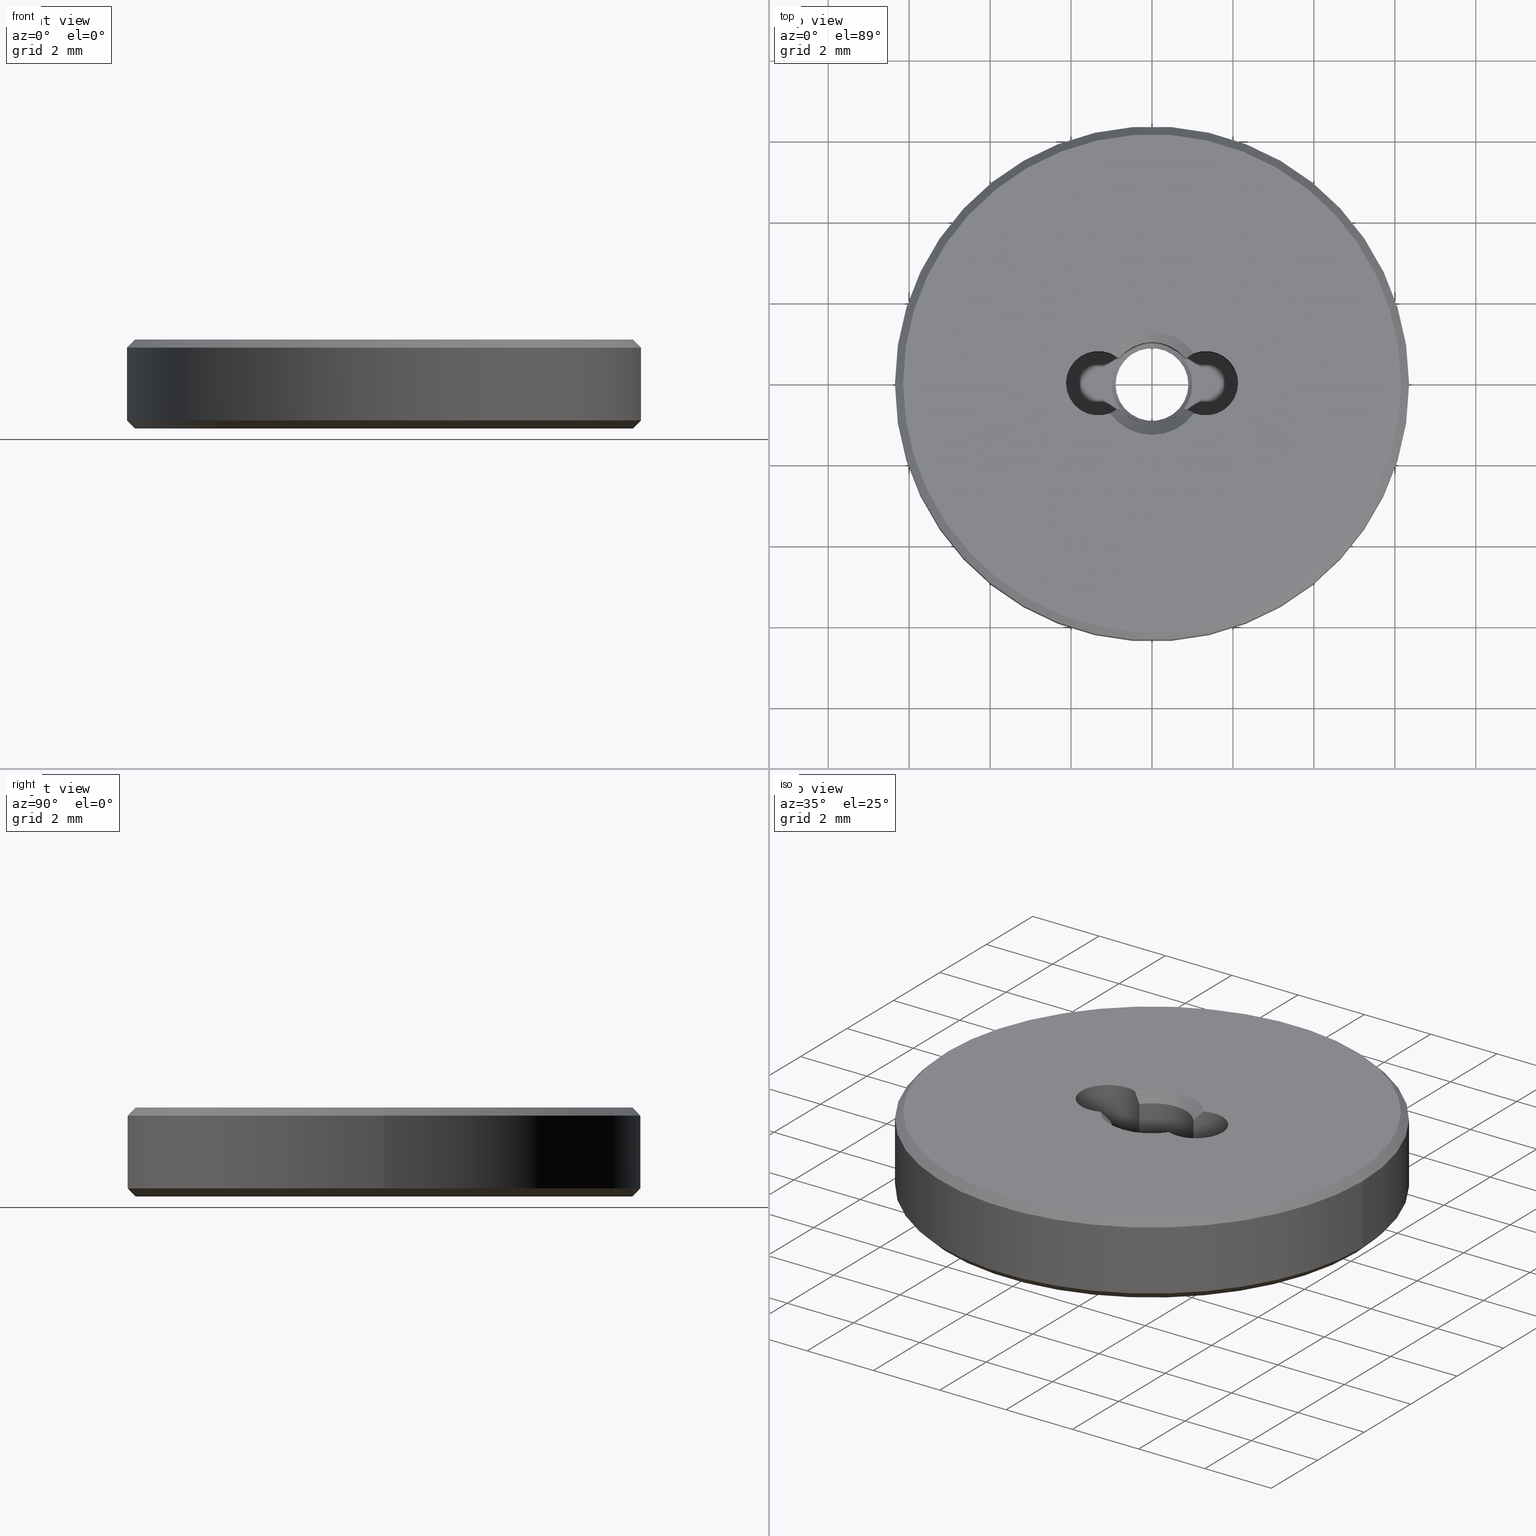
[diagram: canonical four-view strip — front | top / right | iso, engineering-drawing reading convention]
A machine part, canonical four-view strip (front | top / right | iso — engineering-drawing reading convention). The complete STEP part file that produces these views, byte-faithful:
ISO-10303-21;
HEADER;
FILE_DESCRIPTION (( 'STEP AP203' ),
    '1' );
FILE_NAME ('1.6.4.2-ZSJ-05-2.STEP',
    '2024-04-15T05:48:47',
    ( '' ),
    ( '' ),
    'SwSTEP 2.0',
    'SolidWorks 2021',
    '' );
FILE_SCHEMA (( 'CONFIG_CONTROL_DESIGN' ));
ENDSEC;

DATA;
#1 = ORIENTED_EDGE ( 'NONE', *, *, #346, .T. ) ;
#2 = AXIS2_PLACEMENT_3D ( 'NONE', #662, #394, #171 ) ;
#3 = DIRECTION ( 'NONE',  ( -0.000000000000000000, -0.000000000000000000, 1.000000000000000000 ) ) ;
#4 = PRODUCT_DEFINITION_FORMATION_WITH_SPECIFIED_SOURCE ( '�κ�', '', #528, .NOT_KNOWN. ) ;
#5 = FACE_OUTER_BOUND ( 'NONE', #540, .T. ) ;
#6 = DIRECTION ( 'NONE',  ( -0.000000000000000000, -0.000000000000000000, 1.000000000000000000 ) ) ;
#7 = CARTESIAN_POINT ( 'NONE',  ( 0.000000000000000000, 0.000000000000000000, 0.000000000000000000 ) ) ;
#8 = DIRECTION ( 'NONE',  ( 1.000000000000000000, 0.000000000000000000, 0.000000000000000000 ) ) ;
#9 = DIRECTION ( 'NONE',  ( -0.000000000000000000, -0.000000000000000000, -1.000000000000000000 ) ) ;
#10 = VECTOR ( 'NONE', #625, 1000.000000000000000 ) ;
#11 = CARTESIAN_POINT ( 'NONE',  ( 1.149999999999998135, 1.408343819019454056E-16, 0.000000000000000000 ) ) ;
#12 = DIRECTION ( 'NONE',  ( 1.000000000000000000, 0.000000000000000000, 0.000000000000000000 ) ) ;
#13 = VERTEX_POINT ( 'NONE', #583 ) ;
#14 = PERSON_AND_ORGANIZATION_ROLE ( 'creator' ) ;
#15 = CYLINDRICAL_SURFACE ( 'NONE', #178, 1.024999999999999911 ) ;
#16 = ORIENTED_EDGE ( 'NONE', *, *, #318, .T. ) ;
#17 = APPROVAL_ROLE ( '' ) ;
#18 = DIRECTION ( 'NONE',  ( -0.000000000000000000, -0.000000000000000000, -1.000000000000000000 ) ) ;
#19 = PRODUCT_DEFINITION ( 'δ֪', '', #4, #224 ) ;
#20 = ORIENTED_EDGE ( 'NONE', *, *, #270, .T. ) ;
#21 = DATE_AND_TIME ( #459, #324 ) ;
#22 = CLOSED_SHELL ( 'NONE', ( #207, #590, #393, #387, #668, #32, #419, #235, #480, #51, #521, #173, #247, #341, #106, #401, #55, #128, #690, #597, #217, #65 ) ) ;
#23 = DIRECTION ( 'NONE',  ( -0.000000000000000000, -0.000000000000000000, -1.000000000000000000 ) ) ;
#24 = CIRCLE ( 'NONE', #254, 6.349999999999999645 ) ;
#25 = CIRCLE ( 'NONE', #36, 0.8000000000000009326 ) ;
#26 = ORIENTED_EDGE ( 'NONE', *, *, #645, .F. ) ;
#27 = DIRECTION ( 'NONE',  ( 1.000000000000000000, 0.000000000000000000, 0.000000000000000000 ) ) ;
#28 = DIRECTION ( 'NONE',  ( -0.7071067811865490160, 8.659560562354953812E-17, 0.7071067811865460184 ) ) ;
#29 = VERTEX_POINT ( 'NONE', #142 ) ;
#30 = DIRECTION ( 'NONE',  ( 1.000000000000000000, 0.000000000000000000, 0.000000000000000000 ) ) ;
#31 = VERTEX_POINT ( 'NONE', #98 ) ;
#32 = ADVANCED_FACE ( 'NONE', ( #644 ), #53, .F. ) ;
#33 = CARTESIAN_POINT ( 'NONE',  ( 0.000000000000000000, 0.000000000000000000, 2.200000000000000178 ) ) ;
#34 = AXIS2_PLACEMENT_3D ( 'NONE', #693, #23, #399 ) ;
#35 = ORIENTED_EDGE ( 'NONE', *, *, #363, .F. ) ;
#36 = AXIS2_PLACEMENT_3D ( 'NONE', #108, #609, #667 ) ;
#37 = CONICAL_SURFACE ( 'NONE', #258, 1.149999999999998135, 0.7853981633974479459 ) ;
#38 = CARTESIAN_POINT ( 'NONE',  ( -0.8174528301886786474, 0.6183816543337288252, 1.949999999999998179 ) ) ;
#39 = ORIENTED_EDGE ( 'NONE', *, *, #84, .T. ) ;
#40 = DIRECTION ( 'NONE',  ( 0.000000000000000000, 0.000000000000000000, 1.000000000000000000 ) ) ;
#41 = EDGE_LOOP ( 'NONE', ( #188, #486, #388, #562 ) ) ;
#42 = DIRECTION ( 'NONE',  ( 1.000000000000000000, 0.000000000000000000, 0.000000000000000000 ) ) ;
#43 = CARTESIAN_POINT ( 'NONE',  ( 0.000000000000000000, 0.000000000000000000, 0.000000000000000000 ) ) ;
#44 = AXIS2_PLACEMENT_3D ( 'NONE', #695, #92, #647 ) ;
#45 = AXIS2_PLACEMENT_3D ( 'NONE', #542, #436, #660 ) ;
#46 = ORIENTED_EDGE ( 'NONE', *, *, #177, .T. ) ;
#47 = AXIS2_PLACEMENT_3D ( 'NONE', #104, #440, #111 ) ;
#48 = FACE_OUTER_BOUND ( 'NONE', #658, .T. ) ;
#49 = ORIENTED_EDGE ( 'NONE', *, *, #367, .T. ) ;
#50 = ORIENTED_EDGE ( 'NONE', *, *, #166, .F. ) ;
#51 = ADVANCED_FACE ( 'NONE', ( #586 ), #529, .T. ) ;
#52 = DIRECTION ( 'NONE',  ( 0.000000000000000000, 0.000000000000000000, -1.000000000000000000 ) ) ;
#53 = CYLINDRICAL_SURFACE ( 'NONE', #554, 0.8999999999999998002 ) ;
#54 = EDGE_LOOP ( 'NONE', ( #564, #700 ) ) ;
#55 = ADVANCED_FACE ( 'NONE', ( #264 ), #203, .F. ) ;
#56 = CARTESIAN_POINT ( 'NONE',  ( 0.000000000000000000, 0.000000000000000000, 2.200000000000000178 ) ) ;
#57 = CARTESIAN_POINT ( 'NONE',  ( 6.349999999999999645, 0.000000000000000000, 0.1999999999999987899 ) ) ;
#58 = CIRCLE ( 'NONE', #309, 0.8000000000000009326 ) ;
#59 =( NAMED_UNIT ( * ) SI_UNIT ( $, .STERADIAN. ) SOLID_ANGLE_UNIT ( ) );
#60 = LOCAL_TIME ( 13, 48, 47.00000000000000000, #553 ) ;
#61 = DIRECTION ( 'NONE',  ( -0.000000000000000000, -0.000000000000000000, 1.000000000000000000 ) ) ;
#62 = EDGE_CURVE ( 'NONE', #317, #250, #323, .T. ) ;
#63 = DIRECTION ( 'NONE',  ( -0.000000000000000000, -0.000000000000000000, -1.000000000000000000 ) ) ;
#64 = LINE ( 'NONE', #57, #298 ) ;
#65 = ADVANCED_FACE ( 'NONE', ( #209 ), #427, .F. ) ;
#66 = DIRECTION ( 'NONE',  ( 0.000000000000000000, 0.000000000000000000, 1.000000000000000000 ) ) ;
#67 = CYLINDRICAL_SURFACE ( 'NONE', #290, 0.8000000000000009326 ) ;
#68 = ORIENTED_EDGE ( 'NONE', *, *, #241, .F. ) ;
#69 = SHAPE_DEFINITION_REPRESENTATION ( #372, #703 ) ;
#70 = CONICAL_SURFACE ( 'NONE', #580, 6.149999999999999467, 0.7853981633974503884 ) ;
#71 = LINE ( 'NONE', #561, #10 ) ;
#72 = ORIENTED_EDGE ( 'NONE', *, *, #261, .F. ) ;
#73 = EDGE_CURVE ( 'NONE', #302, #340, #592, .T. ) ;
#74 = DIRECTION ( 'NONE',  ( 0.000000000000000000, 0.000000000000000000, 1.000000000000000000 ) ) ;
#75 = ORIENTED_EDGE ( 'NONE', *, *, #80, .T. ) ;
#76 = ORIENTED_EDGE ( 'NONE', *, *, #153, .F. ) ;
#77 = DATE_AND_TIME ( #565, #678 ) ;
#78 = PLANE ( 'NONE',  #556 ) ;
#79 = ORIENTED_EDGE ( 'NONE', *, *, #657, .F. ) ;
#80 = EDGE_CURVE ( 'NONE', #598, #155, #482, .T. ) ;
#81 = CC_DESIGN_APPROVAL ( #507, ( #581 ) ) ;
#82 = DIRECTION ( 'NONE',  ( 0.000000000000000000, 0.000000000000000000, 1.000000000000000000 ) ) ;
#83 = EDGE_LOOP ( 'NONE', ( #539, #630, #297, #120 ) ) ;
#84 = EDGE_CURVE ( 'NONE', #196, #439, #670, .T. ) ;
#85 = CARTESIAN_POINT ( 'NONE',  ( 0.000000000000000000, 0.000000000000000000, 0.000000000000000000 ) ) ;
#86 = ORIENTED_EDGE ( 'NONE', *, *, #241, .T. ) ;
#87 = CYLINDRICAL_SURFACE ( 'NONE', #593, 6.349999999999999645 ) ;
#88 = CARTESIAN_POINT ( 'NONE',  ( -1.034433962264152074, -0.7453666062512402934, 2.200000000000000178 ) ) ;
#89 = APPROVAL_PERSON_ORGANIZATION ( #186, #544, #124 ) ;
#90 = CC_DESIGN_PERSON_AND_ORGANIZATION_ASSIGNMENT ( #354, #406, ( #4 ) ) ;
#91 = FACE_BOUND ( 'NONE', #450, .T. ) ;
#92 = DIRECTION ( 'NONE',  ( -0.000000000000000000, -0.000000000000000000, 1.000000000000000000 ) ) ;
#93 = CARTESIAN_POINT ( 'NONE',  ( 0.8174528301886786474, -0.6183816543337288252, 1.400000000000000133 ) ) ;
#94 = CC_DESIGN_DATE_AND_TIME_ASSIGNMENT ( #77, #409, ( #581 ) ) ;
#95 = DIRECTION ( 'NONE',  ( -0.000000000000000000, -0.000000000000000000, -1.000000000000000000 ) ) ;
#96 = ORIENTED_EDGE ( 'NONE', *, *, #493, .T. ) ;
#97 = DIRECTION ( 'NONE',  ( -0.000000000000000000, -0.000000000000000000, -1.000000000000000000 ) ) ;
#98 = CARTESIAN_POINT ( 'NONE',  ( 1.034433962264152074, 0.7453666062512402934, 2.200000000000000178 ) ) ;
#99 = CIRCLE ( 'NONE', #381, 1.000000000000000888 ) ;
#100 = EDGE_CURVE ( 'NONE', #416, #196, #58, .T. ) ;
#101 = AXIS2_PLACEMENT_3D ( 'NONE', #524, #374, #701 ) ;
#102 = AXIS2_PLACEMENT_3D ( 'NONE', #491, #6, #8 ) ;
#103 = ORIENTED_EDGE ( 'NONE', *, *, #62, .T. ) ;
#104 = CARTESIAN_POINT ( 'NONE',  ( 0.000000000000000000, 0.000000000000000000, 2.200000000000000178 ) ) ;
#105 = VERTEX_POINT ( 'NONE', #431 ) ;
#106 = ADVANCED_FACE ( 'NONE', ( #551 ), #441, .F. ) ;
#107 = ORIENTED_EDGE ( 'NONE', *, *, #140, .F. ) ;
#108 = CARTESIAN_POINT ( 'NONE',  ( -1.324999999999999734, -1.622657008870242488E-16, 0.6000000000000003109 ) ) ;
#109 = CARTESIAN_POINT ( 'NONE',  ( 0.000000000000000000, 0.000000000000000000, 0.000000000000000000 ) ) ;
#110 = MANIFOLD_SOLID_BREP ( '����(Բ��)1', #22 ) ;
#111 = DIRECTION ( 'NONE',  ( 1.000000000000000000, 0.000000000000000000, 0.000000000000000000 ) ) ;
#112 = DIRECTION ( 'NONE',  ( -0.000000000000000000, -0.000000000000000000, -1.000000000000000000 ) ) ;
#113 = CIRCLE ( 'NONE', #509, 1.024999999999999911 ) ;
#114 = AXIS2_PLACEMENT_3D ( 'NONE', #495, #275, #594 ) ;
#115 = DIRECTION ( 'NONE',  ( -0.000000000000000000, -0.000000000000000000, -1.000000000000000000 ) ) ;
#116 = EDGE_CURVE ( 'NONE', #31, #634, #500, .T. ) ;
#117 = CARTESIAN_POINT ( 'NONE',  ( -0.8999999999999998002, 1.102182119232617541E-16, 0.4999999999999994449 ) ) ;
#118 = CARTESIAN_POINT ( 'NONE',  ( 0.8174528301886785364, 0.6183816543337289362, 1.949999999999997957 ) ) ;
#119 = CARTESIAN_POINT ( 'NONE',  ( 0.8824800047626253363, 0.6717538043393653791, 2.034059518351685636 ) ) ;
#120 = ORIENTED_EDGE ( 'NONE', *, *, #559, .F. ) ;
#121 = CARTESIAN_POINT ( 'NONE',  ( 0.8999999999999998002, 0.000000000000000000, 0.2499999999999986955 ) ) ;
#122 = ORIENTED_EDGE ( 'NONE', *, *, #346, .F. ) ;
#123 = CIRCLE ( 'NONE', #45, 0.8999999999999998002 ) ;
#124 = APPROVAL_ROLE ( '' ) ;
#125 = AXIS2_PLACEMENT_3D ( 'NONE', #279, #326, #549 ) ;
#126 = DIRECTION ( 'NONE',  ( 1.000000000000000000, 0.000000000000000000, 0.000000000000000000 ) ) ;
#127 = VERTEX_POINT ( 'NONE', #121 ) ;
#128 = ADVANCED_FACE ( 'NONE', ( #546 ), #457, .F. ) ;
#129 = PERSON_AND_ORGANIZATION ( #526, #632 ) ;
#130 = CARTESIAN_POINT ( 'NONE',  ( 0.000000000000000000, 0.000000000000000000, 0.6000000000000000888 ) ) ;
#131 = ORIENTED_EDGE ( 'NONE', *, *, #308, .T. ) ;
#132 = COORDINATED_UNIVERSAL_TIME_OFFSET ( 8, 0, .AHEAD. ) ;
#133 = DIRECTION ( 'NONE',  ( 1.000000000000000000, 0.000000000000000000, 0.000000000000000000 ) ) ;
#134 = ORIENTED_EDGE ( 'NONE', *, *, #567, .F. ) ;
#135 = CARTESIAN_POINT ( 'NONE',  ( -6.149999999999999467, 0.000000000000000000, 2.200000000000000178 ) ) ;
#136 = VECTOR ( 'NONE', #417, 1000.000000000000000 ) ;
#137 = ORIENTED_EDGE ( 'NONE', *, *, #465, .T. ) ;
#138 = CARTESIAN_POINT ( 'NONE',  ( 0.000000000000000000, 0.000000000000000000, 1.949999999999998179 ) ) ;
#139 = EDGE_LOOP ( 'NONE', ( #531, #35, #650, #626 ) ) ;
#140 = EDGE_CURVE ( 'NONE', #127, #317, #216, .T. ) ;
#141 = LINE ( 'NONE', #577, #654 ) ;
#142 = CARTESIAN_POINT ( 'NONE',  ( -6.150000000000000355, 7.654042494670957606E-16, 0.000000000000000000 ) ) ;
#143 = CC_DESIGN_PERSON_AND_ORGANIZATION_ASSIGNMENT ( #244, #499, ( #528 ) ) ;
#144 = CARTESIAN_POINT ( 'NONE',  ( -6.149999999999999467, 0.000000000000000000, 2.200000000000000178 ) ) ;
#145 = CIRCLE ( 'NONE', #497, 0.8000000000000008216 ) ;
#146 = DIRECTION ( 'NONE',  ( 1.000000000000000000, 0.000000000000000000, 0.000000000000000000 ) ) ;
#147 = CIRCLE ( 'NONE', #595, 6.150000000000000355 ) ;
#148 = PRODUCT_RELATED_PRODUCT_CATEGORY ( 'detail', '', ( #528 ) ) ;
#149 = CARTESIAN_POINT ( 'NONE',  ( -1.034433962264152074, 0.7453666062512400714, 2.200000000000000178 ) ) ;
#150 = VERTEX_POINT ( 'NONE', #343 ) ;
#151 = ORIENTED_EDGE ( 'NONE', *, *, #576, .T. ) ;
#152 = DIRECTION ( 'NONE',  ( 1.000000000000000000, 0.000000000000000000, 0.000000000000000000 ) ) ;
#153 = EDGE_CURVE ( 'NONE', #13, #174, #145, .T. ) ;
#154 = DIRECTION ( 'NONE',  ( 1.000000000000000000, 0.000000000000000000, 0.000000000000000000 ) ) ;
#155 = VERTEX_POINT ( 'NONE', #277 ) ;
#156 = DIRECTION ( 'NONE',  ( 1.000000000000000000, 0.000000000000000000, 0.000000000000000000 ) ) ;
#157 = ORIENTED_EDGE ( 'NONE', *, *, #624, .T. ) ;
#158 = AXIS2_PLACEMENT_3D ( 'NONE', #182, #410, #133 ) ;
#159 = CONICAL_SURFACE ( 'NONE', #557, 6.149999999999999467, 0.7853981633974503884 ) ;
#160 = ORIENTED_EDGE ( 'NONE', *, *, #185, .F. ) ;
#161 = DIRECTION ( 'NONE',  ( -0.000000000000000000, -0.000000000000000000, 1.000000000000000000 ) ) ;
#162 = DIRECTION ( 'NONE',  ( 1.000000000000000000, 0.000000000000000000, 0.000000000000000000 ) ) ;
#163 = ORIENTED_EDGE ( 'NONE', *, *, #437, .T. ) ;
#164 = CARTESIAN_POINT ( 'NONE',  ( 0.000000000000000000, 0.000000000000000000, 0.1999999999999987899 ) ) ;
#165 = DIRECTION ( 'NONE',  ( -0.000000000000000000, -0.000000000000000000, 1.000000000000000000 ) ) ;
#166 = EDGE_CURVE ( 'NONE', #328, #292, #543, .T. ) ;
#167 = DIRECTION ( 'NONE',  ( 1.000000000000000000, 0.000000000000000000, 0.000000000000000000 ) ) ;
#168 = DIRECTION ( 'NONE',  ( -0.000000000000000000, -0.000000000000000000, 1.000000000000000000 ) ) ;
#169 = AXIS2_PLACEMENT_3D ( 'NONE', #396, #331, #656 ) ;
#170 = DIRECTION ( 'NONE',  ( 0.000000000000000000, 0.000000000000000000, -1.000000000000000000 ) ) ;
#171 = DIRECTION ( 'NONE',  ( 1.000000000000000000, 0.000000000000000000, 0.000000000000000000 ) ) ;
#172 = CYLINDRICAL_SURFACE ( 'NONE', #640, 1.024999999999999911 ) ;
#173 = ADVANCED_FACE ( 'NONE', ( #386, #391 ), #669, .F. ) ;
#174 = VERTEX_POINT ( 'NONE', #706 ) ;
#175 = CARTESIAN_POINT ( 'NONE',  ( -0.8174528301886786474, 0.6183816543337288252, 1.400000000000000133 ) ) ;
#176 = ORIENTED_EDGE ( 'NONE', *, *, #430, .T. ) ;
#177 = EDGE_CURVE ( 'NONE', #558, #467, #489, .T. ) ;
#178 = AXIS2_PLACEMENT_3D ( 'NONE', #681, #301, #672 ) ;
#179 = SECURITY_CLASSIFICATION_LEVEL ( 'unclassified' ) ;
#180 = CIRCLE ( 'NONE', #206, 1.000000000000000888 ) ;
#181 = AXIS2_PLACEMENT_3D ( 'NONE', #164, #161, #330 ) ;
#182 = CARTESIAN_POINT ( 'NONE',  ( 0.000000000000000000, 0.000000000000000000, 0.1999999999999987899 ) ) ;
#183 = ORIENTED_EDGE ( 'NONE', *, *, #190, .F. ) ;
#184 = UNCERTAINTY_MEASURE_WITH_UNIT (LENGTH_MEASURE( 1.000000000000000082E-05 ), #442, 'distance_accuracy_value', 'NONE');
#185 = EDGE_CURVE ( 'NONE', #317, #558, #123, .T. ) ;
#186 = PERSON_AND_ORGANIZATION ( #526, #632 ) ;
#187 = CARTESIAN_POINT ( 'NONE',  ( 0.8174528301886786474, -0.6183816543337288252, 1.949999999999998179 ) ) ;
#188 = ORIENTED_EDGE ( 'NONE', *, *, #329, .T. ) ;
#189 = PERSON_AND_ORGANIZATION ( #526, #632 ) ;
#190 = EDGE_CURVE ( 'NONE', #220, #378, #64, .T. ) ;
#191 = CARTESIAN_POINT ( 'NONE',  ( 0.8824800047626255584, -0.6717538043393652680, 2.034059518351685636 ) ) ;
#192 = EDGE_LOOP ( 'NONE', ( #587, #137, #122, #49 ) ) ;
#193 = AXIS2_PLACEMENT_3D ( 'NONE', #109, #165, #226 ) ;
#194 = LINE ( 'NONE', #413, #520 ) ;
#195 = AXIS2_PLACEMENT_3D ( 'NONE', #208, #40, #477 ) ;
#196 = VERTEX_POINT ( 'NONE', #604 ) ;
#197 = CARTESIAN_POINT ( 'NONE',  ( -0.9548159232537262175, 0.7143291302850044433, 2.117259684949949872 ) ) ;
#198 = ORIENTED_EDGE ( 'NONE', *, *, #473, .T. ) ;
#199 = EDGE_CURVE ( 'NONE', #150, #378, #666, .T. ) ;
#200 = CARTESIAN_POINT ( 'NONE',  ( -0.8174528301886785364, -0.6183816543337289362, 0.6000000000000003109 ) ) ;
#201 = CARTESIAN_POINT ( 'NONE',  ( 0.000000000000000000, 0.000000000000000000, 0.6000000000000000888 ) ) ;
#202 = CARTESIAN_POINT ( 'NONE',  ( 1.034433962264152074, -0.7453666062512400714, 2.200000000000000178 ) ) ;
#203 = CONICAL_SURFACE ( 'NONE', #605, 1.149999999999998135, 0.7853981633974479459 ) ;
#204 = CIRCLE ( 'NONE', #696, 1.275000000000001910 ) ;
#205 = CARTESIAN_POINT ( 'NONE',  ( 0.8999999999999998002, 0.000000000000000000, 0.4999999999999994449 ) ) ;
#206 = AXIS2_PLACEMENT_3D ( 'NONE', #694, #260, #320 ) ;
#207 = ADVANCED_FACE ( 'NONE', ( #5 ), #494, .F. ) ;
#208 = CARTESIAN_POINT ( 'NONE',  ( 0.000000000000000000, 0.000000000000000000, 1.949999999999998179 ) ) ;
#209 = FACE_OUTER_BOUND ( 'NONE', #379, .T. ) ;
#210 = ORIENTED_EDGE ( 'NONE', *, *, #536, .T. ) ;
#211 = EDGE_CURVE ( 'NONE', #467, #250, #99, .T. ) ;
#212 = DIRECTION ( 'NONE',  ( 1.000000000000000000, 8.881784197001252323E-16, 0.000000000000000000 ) ) ;
#213 = CARTESIAN_POINT ( 'NONE',  ( -0.8174528301886785364, -0.6183816543337290472, 1.949999999999997957 ) ) ;
#214 = VERTEX_POINT ( 'NONE', #610 ) ;
#215 = DIRECTION ( 'NONE',  ( 0.7071067811865472397, 8.659560562354929160E-17, -0.7071067811865479058 ) ) ;
#216 = LINE ( 'NONE', #443, #218 ) ;
#217 = ADVANCED_FACE ( 'NONE', ( #339 ), #67, .F. ) ;
#218 = VECTOR ( 'NONE', #168, 1000.000000000000000 ) ;
#219 = CIRCLE ( 'NONE', #618, 6.349999999999999645 ) ;
#220 = VERTEX_POINT ( 'NONE', #232 ) ;
#221 = CARTESIAN_POINT ( 'NONE',  ( 0.8174528301886786474, -0.6183816543337288252, 1.949999999999998179 ) ) ;
#222 = CARTESIAN_POINT ( 'NONE',  ( 1.324999999999999734, 1.622657008870242488E-16, -1.662741699796954853 ) ) ;
#223 = CC_DESIGN_DATE_AND_TIME_ASSIGNMENT ( #21, #680, ( #19 ) ) ;
#224 = DESIGN_CONTEXT ( 'detailed design', #584, 'design' ) ;
#225 = CARTESIAN_POINT ( 'NONE',  ( -6.349999999999999645, 0.000000000000000000, 2.000000000000000444 ) ) ;
#226 = DIRECTION ( 'NONE',  ( 1.000000000000000000, 0.000000000000000000, 0.000000000000000000 ) ) ;
#227 = DIRECTION ( 'NONE',  ( -0.7071067811865472397, 0.000000000000000000, -0.7071067811865479058 ) ) ;
#228 = DIRECTION ( 'NONE',  ( -0.000000000000000000, -0.000000000000000000, -1.000000000000000000 ) ) ;
#229 = VECTOR ( 'NONE', #578, 1000.000000000000000 ) ;
#230 = AXIS2_PLACEMENT_3D ( 'NONE', #522, #66, #538 ) ;
#231 = DIRECTION ( 'NONE',  ( 1.000000000000000000, 0.000000000000000000, 0.000000000000000000 ) ) ;
#232 = CARTESIAN_POINT ( 'NONE',  ( 6.150000000000000355, 0.000000000000000000, 0.000000000000000000 ) ) ;
#233 = ORIENTED_EDGE ( 'NONE', *, *, #367, .F. ) ;
#234 = APPROVAL_STATUS ( 'not_yet_approved' ) ;
#235 = ADVANCED_FACE ( 'NONE', ( #449 ), #172, .F. ) ;
#236 = CARTESIAN_POINT ( 'NONE',  ( 0.000000000000000000, 0.000000000000000000, 0.000000000000000000 ) ) ;
#237 = ORIENTED_EDGE ( 'NONE', *, *, #166, .T. ) ;
#238 = APPLICATION_PROTOCOL_DEFINITION ( 'international standard', 'config_control_design', 1994, #584 ) ;
#239 = CARTESIAN_POINT ( 'NONE',  ( 0.8174528301886785364, 0.6183816543337289362, 0.6000000000000003109 ) ) ;
#240 = ORIENTED_EDGE ( 'NONE', *, *, #373, .F. ) ;
#241 = EDGE_CURVE ( 'NONE', #292, #150, #291, .T. ) ;
#242 = VECTOR ( 'NONE', #273, 1000.000000000000114 ) ;
#243 = AXIS2_PLACEMENT_3D ( 'NONE', #222, #61, #284 ) ;
#244 = PERSON_AND_ORGANIZATION ( #526, #632 ) ;
#245 = CARTESIAN_POINT ( 'NONE',  ( 1.034433962264152074, -0.7453666062512400714, 2.200000000000000178 ) ) ;
#246 = ORIENTED_EDGE ( 'NONE', *, *, #517, .F. ) ;
#247 = ADVANCED_FACE ( 'NONE', ( #452 ), #15, .F. ) ;
#248 = CARTESIAN_POINT ( 'NONE',  ( 0.000000000000000000, 0.000000000000000000, 0.000000000000000000 ) ) ;
#249 = DIRECTION ( 'NONE',  ( 0.000000000000000000, 0.000000000000000000, 1.000000000000000000 ) ) ;
#250 = VERTEX_POINT ( 'NONE', #359 ) ;
#251 = PERSON_AND_ORGANIZATION ( #526, #632 ) ;
#252 = CARTESIAN_POINT ( 'NONE',  ( 0.8999999999999998002, 0.000000000000000000, 0.4999999999999994449 ) ) ;
#253 = ORIENTED_EDGE ( 'NONE', *, *, #493, .F. ) ;
#254 = AXIS2_PLACEMENT_3D ( 'NONE', #407, #572, #355 ) ;
#255 = B_SPLINE_CURVE_WITH_KNOTS ( 'NONE', 3,
 ( #187, #191, #460, #245 ),
 .UNSPECIFIED., .F., .F.,
 ( 4, 4 ),
 ( 2.811878998743662709E-07, 0.0003548315929046659610 ),
 .UNSPECIFIED. ) ;
#256 = CARTESIAN_POINT ( 'NONE',  ( 0.000000000000000000, 0.000000000000000000, 2.200000000000000178 ) ) ;
#257 = VECTOR ( 'NONE', #215, 1000.000000000000000 ) ;
#258 = AXIS2_PLACEMENT_3D ( 'NONE', #433, #655, #285 ) ;
#259 = ORIENTED_EDGE ( 'NONE', *, *, #62, .F. ) ;
#260 = DIRECTION ( 'NONE',  ( -0.000000000000000000, -0.000000000000000000, -1.000000000000000000 ) ) ;
#261 = EDGE_CURVE ( 'NONE', #29, #155, #511, .T. ) ;
#262 = ORIENTED_EDGE ( 'NONE', *, *, #651, .T. ) ;
#263 = FACE_OUTER_BOUND ( 'NONE', #139, .T. ) ;
#264 = FACE_OUTER_BOUND ( 'NONE', #315, .T. ) ;
#265 = EDGE_CURVE ( 'NONE', #105, #340, #684, .T. ) ;
#266 = LINE ( 'NONE', #93, #136 ) ;
#267 = VECTOR ( 'NONE', #348, 1000.000000000000000 ) ;
#268 = ORIENTED_EDGE ( 'NONE', *, *, #567, .T. ) ;
#269 = AXIS2_PLACEMENT_3D ( 'NONE', #33, #415, #636 ) ;
#270 = EDGE_CURVE ( 'NONE', #302, #13, #617, .T. ) ;
#271 = ORIENTED_EDGE ( 'NONE', *, *, #624, .F. ) ;
#272 = DIRECTION ( 'NONE',  ( -0.7071067811865490160, 0.000000000000000000, -0.7071067811865459074 ) ) ;
#273 = DIRECTION ( 'NONE',  ( 0.7071067811865493491, 0.000000000000000000, 0.7071067811865456854 ) ) ;
#274 = ORIENTED_EDGE ( 'NONE', *, *, #73, .T. ) ;
#275 = DIRECTION ( 'NONE',  ( 0.000000000000000000, 0.000000000000000000, 1.000000000000000000 ) ) ;
#276 = EDGE_CURVE ( 'NONE', #504, #127, #653, .T. ) ;
#277 = CARTESIAN_POINT ( 'NONE',  ( -6.349999999999999645, 0.000000000000000000, 0.1999999999999987899 ) ) ;
#278 = ORIENTED_EDGE ( 'NONE', *, *, #576, .F. ) ;
#279 = CARTESIAN_POINT ( 'NONE',  ( 1.324999999999999734, 1.622657008870242488E-16, 2.200000000000000178 ) ) ;
#280 = EDGE_CURVE ( 'NONE', #634, #105, #332, .T. ) ;
#281 = CARTESIAN_POINT ( 'NONE',  ( 0.8174528301886785364, 0.6183816543337289362, 1.949999999999997957 ) ) ;
#282 = AXIS2_PLACEMENT_3D ( 'NONE', #616, #18, #126 ) ;
#283 = DIRECTION ( 'NONE',  ( -1.000000000000000000, 0.000000000000000000, 0.000000000000000000 ) ) ;
#284 = DIRECTION ( 'NONE',  ( 1.000000000000000000, 0.000000000000000000, 0.000000000000000000 ) ) ;
#285 = DIRECTION ( 'NONE',  ( -1.000000000000000000, 0.000000000000000000, 0.000000000000000000 ) ) ;
#286 = CARTESIAN_POINT ( 'NONE',  ( 6.349999999999999645, 7.776507174585692163E-16, 2.200000000000000178 ) ) ;
#287 = LINE ( 'NONE', #444, #665 ) ;
#288 = CARTESIAN_POINT ( 'NONE',  ( -1.324999999999999734, -1.622657008870242488E-16, -1.662741699796954853 ) ) ;
#289 = ORIENTED_EDGE ( 'NONE', *, *, #697, .F. ) ;
#290 = AXIS2_PLACEMENT_3D ( 'NONE', #288, #496, #12 ) ;
#291 = LINE ( 'NONE', #566, #267 ) ;
#292 = VERTEX_POINT ( 'NONE', #628 ) ;
#293 = DIRECTION ( 'NONE',  ( 1.000000000000000000, 0.000000000000000000, 0.000000000000000000 ) ) ;
#294 = ORIENTED_EDGE ( 'NONE', *, *, #190, .T. ) ;
#295 = APPLICATION_PROTOCOL_DEFINITION ( 'international standard', 'config_control_design', 1994, #548 ) ;
#296 = DIRECTION ( 'NONE',  ( 0.000000000000000000, 0.000000000000000000, -1.000000000000000000 ) ) ;
#297 = ORIENTED_EDGE ( 'NONE', *, *, #437, .F. ) ;
#298 = VECTOR ( 'NONE', #389, 1000.000000000000114 ) ;
#299 = APPROVAL_STATUS ( 'not_yet_approved' ) ;
#300 = CC_DESIGN_APPROVAL ( #602, ( #19 ) ) ;
#301 = DIRECTION ( 'NONE',  ( -0.000000000000000000, -0.000000000000000000, 1.000000000000000000 ) ) ;
#302 = VERTEX_POINT ( 'NONE', #239 ) ;
#303 = CARTESIAN_POINT ( 'NONE',  ( 0.000000000000000000, 0.000000000000000000, 1.949999999999998179 ) ) ;
#304 = ORIENTED_EDGE ( 'NONE', *, *, #140, .T. ) ;
#305 = EDGE_CURVE ( 'NONE', #155, #378, #368, .T. ) ;
#306 = CARTESIAN_POINT ( 'NONE',  ( 0.000000000000000000, 0.000000000000000000, 0.4999999999999994449 ) ) ;
#307 = ORIENTED_EDGE ( 'NONE', *, *, #153, .T. ) ;
#308 = EDGE_CURVE ( 'NONE', #302, #634, #71, .T. ) ;
#309 = AXIS2_PLACEMENT_3D ( 'NONE', #418, #702, #639 ) ;
#310 = DIRECTION ( 'NONE',  ( -0.000000000000000000, -0.000000000000000000, 1.000000000000000000 ) ) ;
#311 = CIRCLE ( 'NONE', #47, 6.149999999999999467 ) ;
#312 = LOCAL_TIME ( 13, 48, 47.00000000000000000, #395 ) ;
#313 = CARTESIAN_POINT ( 'NONE',  ( -0.9548159232536620467, -0.7143291302849794633, 2.117259684949883258 ) ) ;
#314 = FACE_OUTER_BOUND ( 'NONE', #41, .T. ) ;
#315 = EDGE_LOOP ( 'NONE', ( #525, #349, #682, #475 ) ) ;
#316 = DIRECTION ( 'NONE',  ( 0.000000000000000000, 0.000000000000000000, 1.000000000000000000 ) ) ;
#317 = VERTEX_POINT ( 'NONE', #252 ) ;
#318 = EDGE_CURVE ( 'NONE', #687, #432, #255, .T. ) ;
#319 = ORIENTED_EDGE ( 'NONE', *, *, #199, .F. ) ;
#320 = DIRECTION ( 'NONE',  ( 1.000000000000000000, 0.000000000000000000, 0.000000000000000000 ) ) ;
#321 = AXIS2_PLACEMENT_3D ( 'NONE', #138, #361, #455 ) ;
#322 = CIRCLE ( 'NONE', #114, 0.8000000000000009326 ) ;
#323 = LINE ( 'NONE', #205, #242 ) ;
#324 = LOCAL_TIME ( 13, 48, 47.00000000000000000, #505 ) ;
#325 = ORIENTED_EDGE ( 'NONE', *, *, #265, .F. ) ;
#326 = DIRECTION ( 'NONE',  ( 0.000000000000000000, 0.000000000000000000, 1.000000000000000000 ) ) ;
#327 = CARTESIAN_POINT ( 'NONE',  ( -6.349999999999999645, 0.000000000000000000, 2.200000000000000178 ) ) ;
#328 = VERTEX_POINT ( 'NONE', #135 ) ;
#329 = EDGE_CURVE ( 'NONE', #598, #150, #24, .T. ) ;
#330 = DIRECTION ( 'NONE',  ( 1.000000000000000000, 0.000000000000000000, 0.000000000000000000 ) ) ;
#331 = DIRECTION ( 'NONE',  ( 0.000000000000000000, 0.000000000000000000, 1.000000000000000000 ) ) ;
#332 = CIRCLE ( 'NONE', #321, 1.024999999999999911 ) ;
#333 = CIRCLE ( 'NONE', #545, 1.149999999999998135 ) ;
#334 = DIRECTION ( 'NONE',  ( 0.000000000000000000, 0.000000000000000000, -1.000000000000000000 ) ) ;
#335 = CARTESIAN_POINT ( 'NONE',  ( 0.9548159232536517216, 0.7143291302849755775, 2.117259684949872600 ) ) ;
#336 = EDGE_CURVE ( 'NONE', #214, #400, #345, .T. ) ;
#337 = B_SPLINE_CURVE_WITH_KNOTS ( 'NONE', 3,
 ( #38, #689, #197, #149 ),
 .UNSPECIFIED., .F., .F.,
 ( 4, 4 ),
 ( 2.811878959922994477E-07, 0.0003548315929007836498 ),
 .UNSPECIFIED. ) ;
#338 = DIRECTION ( 'NONE',  ( 1.000000000000000000, 0.000000000000000000, 0.000000000000000000 ) ) ;
#339 = FACE_OUTER_BOUND ( 'NONE', #376, .T. ) ;
#340 = VERTEX_POINT ( 'NONE', #503 ) ;
#341 = ADVANCED_FACE ( 'NONE', ( #563, #466 ), #78, .T. ) ;
#342 = APPROVAL_ROLE ( '' ) ;
#343 = CARTESIAN_POINT ( 'NONE',  ( 6.349999999999999645, 7.776507174585692163E-16, 2.000000000000000444 ) ) ;
#344 = ORIENTED_EDGE ( 'NONE', *, *, #530, .T. ) ;
#345 = CIRCLE ( 'NONE', #476, 1.149999999999998135 ) ;
#346 = EDGE_CURVE ( 'NONE', #464, #174, #434, .T. ) ;
#347 = CALENDAR_DATE ( 2024, 15, 4 ) ;
#348 = DIRECTION ( 'NONE',  ( 0.7071067811865490160, 8.659560562354950115E-17, -0.7071067811865459074 ) ) ;
#349 = ORIENTED_EDGE ( 'NONE', *, *, #276, .F. ) ;
#350 = DIRECTION ( 'NONE',  ( 0.000000000000000000, 0.000000000000000000, 1.000000000000000000 ) ) ;
#351 = CC_DESIGN_PERSON_AND_ORGANIZATION_ASSIGNMENT ( #398, #14, ( #19 ) ) ;
#352 = DIRECTION ( 'NONE',  ( 1.000000000000000000, 0.000000000000000000, 0.000000000000000000 ) ) ;
#353 = ORIENTED_EDGE ( 'NONE', *, *, #651, .F. ) ;
#354 = PERSON_AND_ORGANIZATION ( #526, #632 ) ;
#355 = DIRECTION ( 'NONE',  ( 1.000000000000000000, 0.000000000000000000, 0.000000000000000000 ) ) ;
#356 = ORIENTED_EDGE ( 'NONE', *, *, #517, .T. ) ;
#357 = AXIS2_PLACEMENT_3D ( 'NONE', #7, #485, #608 ) ;
#358 = CIRCLE ( 'NONE', #423, 0.8999999999999998002 ) ;
#359 = CARTESIAN_POINT ( 'NONE',  ( 1.000000000000000888, 0.000000000000000000, 0.6000000000000000888 ) ) ;
#360 = ORIENTED_EDGE ( 'NONE', *, *, #270, .F. ) ;
#361 = DIRECTION ( 'NONE',  ( 0.000000000000000000, 0.000000000000000000, 1.000000000000000000 ) ) ;
#362 = ORIENTED_EDGE ( 'NONE', *, *, #116, .T. ) ;
#363 = EDGE_CURVE ( 'NONE', #439, #687, #113, .T. ) ;
#364 = LINE ( 'NONE', #144, #570 ) ;
#365 = VERTEX_POINT ( 'NONE', #686 ) ;
#366 = EDGE_LOOP ( 'NONE', ( #134, #601, #304, #671 ) ) ;
#367 = EDGE_CURVE ( 'NONE', #464, #439, #194, .T. ) ;
#368 = CIRCLE ( 'NONE', #158, 6.349999999999999645 ) ;
#369 = DIRECTION ( 'NONE',  ( 1.000000000000000000, 0.000000000000000000, 0.000000000000000000 ) ) ;
#370 = APPROVAL_PERSON_ORGANIZATION ( #251, #507, #342 ) ;
#371 = DIRECTION ( 'NONE',  ( -1.000000000000000000, 0.000000000000000000, 0.000000000000000000 ) ) ;
#372 = PRODUCT_DEFINITION_SHAPE ( 'NONE', 'NONE',  #19 ) ;
#373 = EDGE_CURVE ( 'NONE', #416, #31, #204, .T. ) ;
#374 = DIRECTION ( 'NONE',  ( -0.000000000000000000, -0.000000000000000000, 1.000000000000000000 ) ) ;
#375 = DIRECTION ( 'NONE',  ( -0.000000000000000000, -0.000000000000000000, 1.000000000000000000 ) ) ;
#376 = EDGE_LOOP ( 'NONE', ( #157, #325, #356, #453, #39, #233 ) ) ;
#377 = CARTESIAN_POINT ( 'NONE',  ( 0.000000000000000000, 0.000000000000000000, 2.200000000000000178 ) ) ;
#378 = VERTEX_POINT ( 'NONE', #527 ) ;
#379 = EDGE_LOOP ( 'NONE', ( #575, #307, #472, #16, #573 ) ) ;
#380 = CARTESIAN_POINT ( 'NONE',  ( -0.8999999999999998002, 1.102182119232617541E-16, 0.000000000000000000 ) ) ;
#381 = AXIS2_PLACEMENT_3D ( 'NONE', #492, #9, #445 ) ;
#382 = ORIENTED_EDGE ( 'NONE', *, *, #305, .T. ) ;
#383 = CIRCLE ( 'NONE', #102, 6.349999999999999645 ) ;
#384 = ORIENTED_EDGE ( 'NONE', *, *, #635, .T. ) ;
#385 = CARTESIAN_POINT ( 'NONE',  ( -0.8999999999999998002, 1.102182119232617541E-16, 0.4999999999999994449 ) ) ;
#386 = FACE_OUTER_BOUND ( 'NONE', #54, .T. ) ;
#387 = ADVANCED_FACE ( 'NONE', ( #588 ), #569, .F. ) ;
#388 = ORIENTED_EDGE ( 'NONE', *, *, #697, .T. ) ;
#389 = DIRECTION ( 'NONE',  ( 0.7071067811865490160, 0.000000000000000000, 0.7071067811865460184 ) ) ;
#390 = LINE ( 'NONE', #11, #257 ) ;
#391 = FACE_BOUND ( 'NONE', #411, .T. ) ;
#392 = DIRECTION ( 'NONE',  ( -1.000000000000000000, 0.000000000000000000, 0.000000000000000000 ) ) ;
#393 = ADVANCED_FACE ( 'NONE', ( #48 ), #488, .T. ) ;
#394 = DIRECTION ( 'NONE',  ( 0.000000000000000000, 0.000000000000000000, 1.000000000000000000 ) ) ;
#395 = COORDINATED_UNIVERSAL_TIME_OFFSET ( 8, 0, .AHEAD. ) ;
#396 = CARTESIAN_POINT ( 'NONE',  ( 0.000000000000000000, 0.000000000000000000, 0.4999999999999994449 ) ) ;
#397 = ORIENTED_EDGE ( 'NONE', *, *, #261, .T. ) ;
#398 = PERSON_AND_ORGANIZATION ( #526, #632 ) ;
#399 = DIRECTION ( 'NONE',  ( 1.000000000000000000, -1.776356839400250859E-15, 0.000000000000000000 ) ) ;
#400 = VERTEX_POINT ( 'NONE', #582 ) ;
#401 = ADVANCED_FACE ( 'NONE', ( #263 ), #676, .F. ) ;
#402 = AXIS2_PLACEMENT_3D ( 'NONE', #643, #426, #42 ) ;
#403 = CC_DESIGN_APPROVAL ( #544, ( #4 ) ) ;
#404 = DIRECTION ( 'NONE',  ( -0.000000000000000000, -0.000000000000000000, 1.000000000000000000 ) ) ;
#405 = EDGE_LOOP ( 'NONE', ( #319, #425, #75, #382 ) ) ;
#406 = PERSON_AND_ORGANIZATION_ROLE ( 'creator' ) ;
#407 = CARTESIAN_POINT ( 'NONE',  ( 0.000000000000000000, 0.000000000000000000, 2.000000000000000444 ) ) ;
#408 = ORIENTED_EDGE ( 'NONE', *, *, #308, .F. ) ;
#409 = DATE_TIME_ROLE ( 'classification_date' ) ;
#410 = DIRECTION ( 'NONE',  ( -0.000000000000000000, -0.000000000000000000, 1.000000000000000000 ) ) ;
#411 = EDGE_LOOP ( 'NONE', ( #163, #508 ) ) ;
#412 = LOCAL_TIME ( 13, 48, 47.00000000000000000, #510 ) ;
#413 = CARTESIAN_POINT ( 'NONE',  ( -0.8174528301886785364, -0.6183816543337289362, 1.400000000000000133 ) ) ;
#414 = EDGE_LOOP ( 'NONE', ( #198, #268, #210, #107 ) ) ;
#415 = DIRECTION ( 'NONE',  ( 0.000000000000000000, 0.000000000000000000, 1.000000000000000000 ) ) ;
#416 = VERTEX_POINT ( 'NONE', #649 ) ;
#417 = DIRECTION ( 'NONE',  ( 0.000000000000000000, 0.000000000000000000, -1.000000000000000000 ) ) ;
#418 = CARTESIAN_POINT ( 'NONE',  ( -1.324999999999999734, -1.622657008870242488E-16, 2.200000000000000178 ) ) ;
#419 = ADVANCED_FACE ( 'NONE', ( #314 ), #87, .T. ) ;
#420 = AXIS2_PLACEMENT_3D ( 'NONE', #478, #699, #596 ) ;
#421 = AXIS2_PLACEMENT_3D ( 'NONE', #130, #82, #352 ) ;
#422 = FACE_OUTER_BOUND ( 'NONE', #673, .T. ) ;
#423 = AXIS2_PLACEMENT_3D ( 'NONE', #469, #574, #638 ) ;
#424 =( GEOMETRIC_REPRESENTATION_CONTEXT ( 3 ) GLOBAL_UNCERTAINTY_ASSIGNED_CONTEXT ( ( #184 ) ) GLOBAL_UNIT_ASSIGNED_CONTEXT ( ( #442, #603, #59 ) ) REPRESENTATION_CONTEXT ( 'NONE', 'WORKASPACE' ) );
#425 = ORIENTED_EDGE ( 'NONE', *, *, #645, .T. ) ;
#426 = DIRECTION ( 'NONE',  ( 0.000000000000000000, 0.000000000000000000, 1.000000000000000000 ) ) ;
#427 = CYLINDRICAL_SURFACE ( 'NONE', #44, 0.8000000000000008216 ) ;
#428 = EDGE_LOOP ( 'NONE', ( #1, #76, #360, #274, #271 ) ) ;
#429 = CARTESIAN_POINT ( 'NONE',  ( -0.8999999999999998002, 1.102182119232617541E-16, 0.2499999999999986955 ) ) ;
#430 = EDGE_CURVE ( 'NONE', #250, #467, #180, .T. ) ;
#431 = CARTESIAN_POINT ( 'NONE',  ( -0.8174528301886786474, 0.6183816543337288252, 1.949999999999998179 ) ) ;
#432 = VERTEX_POINT ( 'NONE', #202 ) ;
#433 = CARTESIAN_POINT ( 'NONE',  ( 0.000000000000000000, 0.000000000000000000, 0.000000000000000000 ) ) ;
#434 = CIRCLE ( 'NONE', #421, 1.024999999999999911 ) ;
#435 = CIRCLE ( 'NONE', #458, 1.275000000000001910 ) ;
#436 = DIRECTION ( 'NONE',  ( 0.000000000000000000, 0.000000000000000000, 1.000000000000000000 ) ) ;
#437 = EDGE_CURVE ( 'NONE', #400, #214, #333, .T. ) ;
#438 = AXIS2_PLACEMENT_3D ( 'NONE', #248, #350, #27 ) ;
#439 = VERTEX_POINT ( 'NONE', #533 ) ;
#440 = DIRECTION ( 'NONE',  ( 0.000000000000000000, 0.000000000000000000, 1.000000000000000000 ) ) ;
#441 = CYLINDRICAL_SURFACE ( 'NONE', #193, 0.8999999999999998002 ) ;
#442 =( LENGTH_UNIT ( ) NAMED_UNIT ( * ) SI_UNIT ( .MILLI., .METRE. ) );
#443 = CARTESIAN_POINT ( 'NONE',  ( 0.8999999999999998002, 0.000000000000000000, 0.000000000000000000 ) ) ;
#444 = CARTESIAN_POINT ( 'NONE',  ( -1.149999999999998135, 0.000000000000000000, 0.000000000000000000 ) ) ;
#445 = DIRECTION ( 'NONE',  ( 1.000000000000000000, 0.000000000000000000, 0.000000000000000000 ) ) ;
#446 = VECTOR ( 'NONE', #112, 1000.000000000000000 ) ;
#447 = CIRCLE ( 'NONE', #125, 0.8000000000000009326 ) ;
#448 = FACE_OUTER_BOUND ( 'NONE', #652, .T. ) ;
#449 = FACE_OUTER_BOUND ( 'NONE', #648, .T. ) ;
#450 = EDGE_LOOP ( 'NONE', ( #591, #384, #456, #535, #278 ) ) ;
#451 = DATE_AND_TIME ( #347, #60 ) ;
#452 = FACE_OUTER_BOUND ( 'NONE', #192, .T. ) ;
#453 = ORIENTED_EDGE ( 'NONE', *, *, #100, .T. ) ;
#454 = APPROVAL_STATUS ( 'not_yet_approved' ) ;
#455 = DIRECTION ( 'NONE',  ( 1.000000000000000000, 0.000000000000000000, 0.000000000000000000 ) ) ;
#456 = ORIENTED_EDGE ( 'NONE', *, *, #100, .F. ) ;
#457 = CONICAL_SURFACE ( 'NONE', #169, 0.8999999999999998002, 0.7853981633974509435 ) ;
#458 = AXIS2_PLACEMENT_3D ( 'NONE', #56, #63, #338 ) ;
#459 = CALENDAR_DATE ( 2024, 15, 4 ) ;
#460 = CARTESIAN_POINT ( 'NONE',  ( 0.9548159232536517216, -0.7143291302849753555, 2.117259684949872600 ) ) ;
#461 = ORIENTED_EDGE ( 'NONE', *, *, #430, .F. ) ;
#462 = CALENDAR_DATE ( 2024, 15, 4 ) ;
#463 = DIRECTION ( 'NONE',  ( 1.000000000000000000, 0.000000000000000000, -0.000000000000000000 ) ) ;
#464 = VERTEX_POINT ( 'NONE', #200 ) ;
#465 = EDGE_CURVE ( 'NONE', #687, #174, #266, .T. ) ;
#466 = FACE_OUTER_BOUND ( 'NONE', #428, .T. ) ;
#467 = VERTEX_POINT ( 'NONE', #481 ) ;
#468 = AXIS2_PLACEMENT_3D ( 'NONE', #201, #691, #154 ) ;
#469 = CARTESIAN_POINT ( 'NONE',  ( 0.000000000000000000, 0.000000000000000000, 0.2499999999999986955 ) ) ;
#470 = CARTESIAN_POINT ( 'NONE',  ( 0.000000000000000000, 0.000000000000000000, 0.000000000000000000 ) ) ;
#471 = CARTESIAN_POINT ( 'NONE',  ( 0.000000000000000000, 0.000000000000000000, 0.000000000000000000 ) ) ;
#472 = ORIENTED_EDGE ( 'NONE', *, *, #465, .F. ) ;
#473 = EDGE_CURVE ( 'NONE', #127, #504, #358, .T. ) ;
#474 = DIRECTION ( 'NONE',  ( -1.000000000000000000, 0.000000000000000000, 0.000000000000000000 ) ) ;
#475 = ORIENTED_EDGE ( 'NONE', *, *, #336, .F. ) ;
#476 = AXIS2_PLACEMENT_3D ( 'NONE', #236, #74, #293 ) ;
#477 = DIRECTION ( 'NONE',  ( 1.000000000000000000, 0.000000000000000000, 0.000000000000000000 ) ) ;
#478 = CARTESIAN_POINT ( 'NONE',  ( 0.000000000000000000, 0.000000000000000000, 2.200000000000000178 ) ) ;
#479 = ORIENTED_EDGE ( 'NONE', *, *, #280, .F. ) ;
#480 = ADVANCED_FACE ( 'NONE', ( #422 ), #607, .F. ) ;
#481 = CARTESIAN_POINT ( 'NONE',  ( -1.000000000000000888, 1.224646799147354193E-16, 0.6000000000000000888 ) ) ;
#482 = LINE ( 'NONE', #327, #229 ) ;
#483 = ORIENTED_EDGE ( 'NONE', *, *, #280, .T. ) ;
#484 = CARTESIAN_POINT ( 'NONE',  ( 0.000000000000000000, 0.000000000000000000, 2.000000000000000444 ) ) ;
#485 = DIRECTION ( 'NONE',  ( 0.000000000000000000, 0.000000000000000000, 1.000000000000000000 ) ) ;
#486 = ORIENTED_EDGE ( 'NONE', *, *, #199, .T. ) ;
#487 = LINE ( 'NONE', #380, #631 ) ;
#488 = CONICAL_SURFACE ( 'NONE', #101, 6.349999999999999645, 0.7853981633974504994 ) ;
#489 = LINE ( 'NONE', #117, #675 ) ;
#490 = CONICAL_SURFACE ( 'NONE', #181, 6.349999999999999645, 0.7853981633974504994 ) ;
#491 = CARTESIAN_POINT ( 'NONE',  ( 0.000000000000000000, 0.000000000000000000, 0.1999999999999987899 ) ) ;
#492 = CARTESIAN_POINT ( 'NONE',  ( 0.000000000000000000, 0.000000000000000000, 0.6000000000000000888 ) ) ;
#493 = EDGE_CURVE ( 'NONE', #328, #598, #364, .T. ) ;
#494 = CYLINDRICAL_SURFACE ( 'NONE', #243, 0.8000000000000008216 ) ;
#495 = CARTESIAN_POINT ( 'NONE',  ( 1.324999999999999734, 1.622657008870242488E-16, 2.200000000000000178 ) ) ;
#496 = DIRECTION ( 'NONE',  ( -0.000000000000000000, -0.000000000000000000, 1.000000000000000000 ) ) ;
#497 = AXIS2_PLACEMENT_3D ( 'NONE', #555, #228, #162 ) ;
#498 = EDGE_LOOP ( 'NONE', ( #176, #568 ) ) ;
#499 = PERSON_AND_ORGANIZATION_ROLE ( 'design_owner' ) ;
#500 = B_SPLINE_CURVE_WITH_KNOTS ( 'NONE', 3,
 ( #600, #335, #119, #281 ),
 .UNSPECIFIED., .F., .F.,
 ( 4, 4 ),
 ( 2.856743310694542439E-07, 0.0003548360793358613149 ),
 .UNSPECIFIED. ) ;
#501 = CARTESIAN_POINT ( 'NONE',  ( -6.349999999999999645, 7.776507174585692163E-16, 0.1999999999999987899 ) ) ;
#502 = EDGE_LOOP ( 'NONE', ( #619, #160, #103, #622 ) ) ;
#503 = CARTESIAN_POINT ( 'NONE',  ( -0.8174528301886786474, 0.6183816543337288252, 0.6000000000000003109 ) ) ;
#504 = VERTEX_POINT ( 'NONE', #429 ) ;
#505 = COORDINATED_UNIVERSAL_TIME_OFFSET ( 8, 0, .AHEAD. ) ;
#506 = DIRECTION ( 'NONE',  ( 1.000000000000000000, 0.000000000000000000, 0.000000000000000000 ) ) ;
#507 = APPROVAL ( #299, 'δָ��' ) ;
#508 = ORIENTED_EDGE ( 'NONE', *, *, #336, .T. ) ;
#509 = AXIS2_PLACEMENT_3D ( 'NONE', #303, #515, #30 ) ;
#510 = COORDINATED_UNIVERSAL_TIME_OFFSET ( 8, 0, .AHEAD. ) ;
#511 = LINE ( 'NONE', #501, #579 ) ;
#512 = EDGE_LOOP ( 'NONE', ( #537, #46, #461, #259 ) ) ;
#513 = EDGE_CURVE ( 'NONE', #220, #29, #642, .T. ) ;
#514 = DATE_AND_TIME ( #611, #312 ) ;
#515 = DIRECTION ( 'NONE',  ( 0.000000000000000000, 0.000000000000000000, 1.000000000000000000 ) ) ;
#516 = ORIENTED_EDGE ( 'NONE', *, *, #116, .F. ) ;
#517 = EDGE_CURVE ( 'NONE', #105, #416, #337, .T. ) ;
#518 = DIRECTION ( 'NONE',  ( -0.000000000000000000, -0.000000000000000000, -1.000000000000000000 ) ) ;
#519 = ORIENTED_EDGE ( 'NONE', *, *, #513, .F. ) ;
#520 = VECTOR ( 'NONE', #633, 1000.000000000000000 ) ;
#521 = ADVANCED_FACE ( 'NONE', ( #91, #698 ), #646, .T. ) ;
#522 = CARTESIAN_POINT ( 'NONE',  ( 0.000000000000000000, 0.000000000000000000, 0.4999999999999994449 ) ) ;
#523 = CARTESIAN_POINT ( 'NONE',  ( -0.8824800047626335520, -0.6717538043393722624, 2.034059518351696738 ) ) ;
#524 = CARTESIAN_POINT ( 'NONE',  ( 0.000000000000000000, 0.000000000000000000, 0.1999999999999987899 ) ) ;
#525 = ORIENTED_EDGE ( 'NONE', *, *, #614, .F. ) ;
#526 = PERSON ( 'δָ��', 'δָ��', 'δָ��', ('δָ��'), ('δָ��'), ('δָ��') ) ;
#527 = CARTESIAN_POINT ( 'NONE',  ( 6.349999999999999645, 7.776507174585692163E-16, 0.1999999999999987899 ) ) ;
#528 = PRODUCT ( '1.6.4.2-ZSJ-05-2', '1.6.4.2-ZSJ-05-2', '', ( #620 ) ) ;
#529 = CYLINDRICAL_SURFACE ( 'NONE', #420, 6.349999999999999645 ) ;
#530 = EDGE_CURVE ( 'NONE', #13, #365, #141, .T. ) ;
#531 = ORIENTED_EDGE ( 'NONE', *, *, #318, .F. ) ;
#532 = AXIS2_PLACEMENT_3D ( 'NONE', #85, #518, #369 ) ;
#533 = CARTESIAN_POINT ( 'NONE',  ( -0.8174528301886785364, -0.6183816543337290472, 1.949999999999997957 ) ) ;
#534 = APPROVAL_PERSON_ORGANIZATION ( #129, #602, #17 ) ;
#535 = ORIENTED_EDGE ( 'NONE', *, *, #373, .T. ) ;
#536 = EDGE_CURVE ( 'NONE', #558, #317, #688, .T. ) ;
#537 = ORIENTED_EDGE ( 'NONE', *, *, #536, .F. ) ;
#538 = DIRECTION ( 'NONE',  ( 1.000000000000000000, 0.000000000000000000, 0.000000000000000000 ) ) ;
#539 = ORIENTED_EDGE ( 'NONE', *, *, #473, .F. ) ;
#540 = EDGE_LOOP ( 'NONE', ( #20, #344, #151, #362, #408 ) ) ;
#541 = EDGE_CURVE ( 'NONE', #432, #365, #447, .T. ) ;
#542 = CARTESIAN_POINT ( 'NONE',  ( 0.000000000000000000, 0.000000000000000000, 0.4999999999999994449 ) ) ;
#543 = CIRCLE ( 'NONE', #2, 6.149999999999999467 ) ;
#544 = APPROVAL ( #234, 'δָ��' ) ;
#545 = AXIS2_PLACEMENT_3D ( 'NONE', #471, #585, #156 ) ;
#546 = FACE_OUTER_BOUND ( 'NONE', #502, .T. ) ;
#547 = CC_DESIGN_SECURITY_CLASSIFICATION ( #581, ( #4 ) ) ;
#548 = APPLICATION_CONTEXT ( 'configuration controlled 3d designs of mechanical parts and assemblies' ) ;
#549 = DIRECTION ( 'NONE',  ( -1.000000000000000000, 0.000000000000000000, 0.000000000000000000 ) ) ;
#550 = DIRECTION ( 'NONE',  ( -0.7071067811865493491, 8.659560562354957510E-17, 0.7071067811865456854 ) ) ;
#551 = FACE_OUTER_BOUND ( 'NONE', #366, .T. ) ;
#552 = ORIENTED_EDGE ( 'NONE', *, *, #329, .F. ) ;
#553 = COORDINATED_UNIVERSAL_TIME_OFFSET ( 8, 0, .AHEAD. ) ;
#554 = AXIS2_PLACEMENT_3D ( 'NONE', #470, #375, #146 ) ;
#555 = CARTESIAN_POINT ( 'NONE',  ( 1.324999999999999734, 1.622657008870242488E-16, 0.6000000000000003109 ) ) ;
#556 = AXIS2_PLACEMENT_3D ( 'NONE', #621, #249, #463 ) ;
#557 = AXIS2_PLACEMENT_3D ( 'NONE', #599, #170, #392 ) ;
#558 = VERTEX_POINT ( 'NONE', #385 ) ;
#559 = EDGE_CURVE ( 'NONE', #504, #400, #287, .T. ) ;
#560 = PERSON_AND_ORGANIZATION ( #526, #632 ) ;
#561 = CARTESIAN_POINT ( 'NONE',  ( 0.8174528301886785364, 0.6183816543337289362, 1.400000000000000133 ) ) ;
#562 = ORIENTED_EDGE ( 'NONE', *, *, #80, .F. ) ;
#563 = FACE_BOUND ( 'NONE', #498, .T. ) ;
#564 = ORIENTED_EDGE ( 'NONE', *, *, #513, .T. ) ;
#565 = CALENDAR_DATE ( 2024, 15, 4 ) ;
#566 = CARTESIAN_POINT ( 'NONE',  ( 6.149999999999999467, 7.531577814756219106E-16, 2.200000000000000178 ) ) ;
#567 = EDGE_CURVE ( 'NONE', #504, #558, #487, .T. ) ;
#568 = ORIENTED_EDGE ( 'NONE', *, *, #211, .T. ) ;
#569 = CONICAL_SURFACE ( 'NONE', #664, 0.8999999999999998002, 0.7853981633974509435 ) ;
#570 = VECTOR ( 'NONE', #272, 1000.000000000000000 ) ;
#571 = APPROVAL_DATE_TIME ( #627, #507 ) ;
#572 = DIRECTION ( 'NONE',  ( 0.000000000000000000, 0.000000000000000000, -1.000000000000000000 ) ) ;
#573 = ORIENTED_EDGE ( 'NONE', *, *, #541, .T. ) ;
#574 = DIRECTION ( 'NONE',  ( -0.000000000000000000, -0.000000000000000000, -1.000000000000000000 ) ) ;
#575 = ORIENTED_EDGE ( 'NONE', *, *, #530, .F. ) ;
#576 = EDGE_CURVE ( 'NONE', #365, #31, #322, .T. ) ;
#577 = CARTESIAN_POINT ( 'NONE',  ( 2.125000000000000444, 1.622657008870242488E-16, -1.662741699796954853 ) ) ;
#578 = DIRECTION ( 'NONE',  ( -0.000000000000000000, -0.000000000000000000, -1.000000000000000000 ) ) ;
#579 = VECTOR ( 'NONE', #28, 1000.000000000000114 ) ;
#580 = AXIS2_PLACEMENT_3D ( 'NONE', #663, #52, #283 ) ;
#581 = SECURITY_CLASSIFICATION ( '', '', #179 ) ;
#582 = CARTESIAN_POINT ( 'NONE',  ( -1.149999999999998135, 0.000000000000000000, 0.000000000000000000 ) ) ;
#583 = CARTESIAN_POINT ( 'NONE',  ( 2.125000000000000888, 1.622657008870242488E-16, 0.6000000000000003109 ) ) ;
#584 = APPLICATION_CONTEXT ( 'configuration controlled 3d designs of mechanical parts and assemblies' ) ;
#585 = DIRECTION ( 'NONE',  ( 0.000000000000000000, 0.000000000000000000, 1.000000000000000000 ) ) ;
#586 = FACE_OUTER_BOUND ( 'NONE', #405, .T. ) ;
#587 = ORIENTED_EDGE ( 'NONE', *, *, #363, .T. ) ;
#588 = FACE_OUTER_BOUND ( 'NONE', #512, .T. ) ;
#589 = ORIENTED_EDGE ( 'NONE', *, *, #305, .F. ) ;
#590 = ADVANCED_FACE ( 'NONE', ( #661 ), #70, .T. ) ;
#591 = ORIENTED_EDGE ( 'NONE', *, *, #541, .F. ) ;
#592 = CIRCLE ( 'NONE', #468, 1.024999999999999911 ) ;
#593 = AXIS2_PLACEMENT_3D ( 'NONE', #377, #97, #474 ) ;
#594 = DIRECTION ( 'NONE',  ( -1.000000000000000000, 0.000000000000000000, 0.000000000000000000 ) ) ;
#595 = AXIS2_PLACEMENT_3D ( 'NONE', #606, #115, #231 ) ;
#596 = DIRECTION ( 'NONE',  ( -1.000000000000000000, 0.000000000000000000, 0.000000000000000000 ) ) ;
#597 = ADVANCED_FACE ( 'NONE', ( #448 ), #159, .T. ) ;
#598 = VERTEX_POINT ( 'NONE', #225 ) ;
#599 = CARTESIAN_POINT ( 'NONE',  ( 0.000000000000000000, 0.000000000000000000, 2.200000000000000178 ) ) ;
#600 = CARTESIAN_POINT ( 'NONE',  ( 1.034433962264152074, 0.7453666062512402934, 2.200000000000000178 ) ) ;
#601 = ORIENTED_EDGE ( 'NONE', *, *, #276, .T. ) ;
#602 = APPROVAL ( #454, 'δָ��' ) ;
#603 =( NAMED_UNIT ( * ) PLANE_ANGLE_UNIT ( ) SI_UNIT ( $, .RADIAN. ) );
#604 = CARTESIAN_POINT ( 'NONE',  ( -1.034433962264152074, -0.7453666062512402934, 2.200000000000000178 ) ) ;
#605 = AXIS2_PLACEMENT_3D ( 'NONE', #43, #95, #371 ) ;
#606 = CARTESIAN_POINT ( 'NONE',  ( 0.000000000000000000, 0.000000000000000000, 0.000000000000000000 ) ) ;
#607 = CONICAL_SURFACE ( 'NONE', #402, 1.024999999999999911, 0.7853981633974482790 ) ;
#608 = DIRECTION ( 'NONE',  ( 1.000000000000000000, 0.000000000000000000, -0.000000000000000000 ) ) ;
#609 = DIRECTION ( 'NONE',  ( -0.000000000000000000, -0.000000000000000000, -1.000000000000000000 ) ) ;
#610 = CARTESIAN_POINT ( 'NONE',  ( 1.149999999999998135, 1.408343819019454056E-16, 0.000000000000000000 ) ) ;
#611 = CALENDAR_DATE ( 2024, 15, 4 ) ;
#612 = CARTESIAN_POINT ( 'NONE',  ( 0.000000000000000000, 0.000000000000000000, 0.6000000000000000888 ) ) ;
#613 = EDGE_LOOP ( 'NONE', ( #72, #519, #294, #589 ) ) ;
#614 = EDGE_CURVE ( 'NONE', #127, #214, #390, .T. ) ;
#615 = APPROVAL_DATE_TIME ( #451, #544 ) ;
#616 = CARTESIAN_POINT ( 'NONE',  ( 0.000000000000000000, 0.000000000000000000, 0.2499999999999986955 ) ) ;
#617 = CIRCLE ( 'NONE', #34, 0.8000000000000008216 ) ;
#618 = AXIS2_PLACEMENT_3D ( 'NONE', #484, #334, #167 ) ;
#619 = ORIENTED_EDGE ( 'NONE', *, *, #177, .F. ) ;
#620 = MECHANICAL_CONTEXT ( 'NONE', #548, 'mechanical' ) ;
#621 = CARTESIAN_POINT ( 'NONE',  ( 0.000000000000000000, 0.000000000000000000, 0.6000000000000000888 ) ) ;
#622 = ORIENTED_EDGE ( 'NONE', *, *, #211, .F. ) ;
#623 = PERSON_AND_ORGANIZATION_ROLE ( 'classification_officer' ) ;
#624 = EDGE_CURVE ( 'NONE', #464, #340, #25, .T. ) ;
#625 = DIRECTION ( 'NONE',  ( -0.000000000000000000, -0.000000000000000000, 1.000000000000000000 ) ) ;
#626 = ORIENTED_EDGE ( 'NONE', *, *, #635, .F. ) ;
#627 = DATE_AND_TIME ( #462, #412 ) ;
#628 = CARTESIAN_POINT ( 'NONE',  ( 6.149999999999999467, 7.654042494670954648E-16, 2.200000000000000178 ) ) ;
#629 = VECTOR ( 'NONE', #296, 1000.000000000000000 ) ;
#630 = ORIENTED_EDGE ( 'NONE', *, *, #614, .T. ) ;
#631 = VECTOR ( 'NONE', #3, 1000.000000000000000 ) ;
#632 = ORGANIZATION ( 'δָ��', 'δָ��', '' ) ;
#633 = DIRECTION ( 'NONE',  ( -0.000000000000000000, -0.000000000000000000, 1.000000000000000000 ) ) ;
#634 = VERTEX_POINT ( 'NONE', #118 ) ;
#635 = EDGE_CURVE ( 'NONE', #432, #196, #435, .T. ) ;
#636 = DIRECTION ( 'NONE',  ( 1.000000000000000000, 0.000000000000000000, -0.000000000000000000 ) ) ;
#637 = ORIENTED_EDGE ( 'NONE', *, *, #265, .T. ) ;
#638 = DIRECTION ( 'NONE',  ( 1.000000000000000000, 0.000000000000000000, 0.000000000000000000 ) ) ;
#639 = DIRECTION ( 'NONE',  ( 1.000000000000000000, 0.000000000000000000, 0.000000000000000000 ) ) ;
#640 = AXIS2_PLACEMENT_3D ( 'NONE', #612, #404, #506 ) ;
#641 = CC_DESIGN_PERSON_AND_ORGANIZATION_ASSIGNMENT ( #189, #623, ( #581 ) ) ;
#642 = CIRCLE ( 'NONE', #532, 6.150000000000000355 ) ;
#643 = CARTESIAN_POINT ( 'NONE',  ( 0.000000000000000000, 0.000000000000000000, 1.949999999999998179 ) ) ;
#644 = FACE_OUTER_BOUND ( 'NONE', #414, .T. ) ;
#645 = EDGE_CURVE ( 'NONE', #150, #598, #219, .T. ) ;
#646 = PLANE ( 'NONE',  #269 ) ;
#647 = DIRECTION ( 'NONE',  ( 1.000000000000000000, 0.000000000000000000, 0.000000000000000000 ) ) ;
#648 = EDGE_LOOP ( 'NONE', ( #704, #131, #483, #637 ) ) ;
#649 = CARTESIAN_POINT ( 'NONE',  ( -1.034433962264152074, 0.7453666062512400714, 2.200000000000000178 ) ) ;
#650 = ORIENTED_EDGE ( 'NONE', *, *, #84, .F. ) ;
#651 = EDGE_CURVE ( 'NONE', #292, #328, #311, .T. ) ;
#652 = EDGE_LOOP ( 'NONE', ( #68, #50, #96, #26 ) ) ;
#653 = CIRCLE ( 'NONE', #282, 0.8999999999999998002 ) ;
#654 = VECTOR ( 'NONE', #310, 1000.000000000000000 ) ;
#655 = DIRECTION ( 'NONE',  ( -0.000000000000000000, -0.000000000000000000, -1.000000000000000000 ) ) ;
#656 = DIRECTION ( 'NONE',  ( 1.000000000000000000, 0.000000000000000000, 0.000000000000000000 ) ) ;
#657 = EDGE_CURVE ( 'NONE', #29, #220, #147, .T. ) ;
#658 = EDGE_LOOP ( 'NONE', ( #79, #397, #289, #183 ) ) ;
#659 = FACE_OUTER_BOUND ( 'NONE', #613, .T. ) ;
#660 = DIRECTION ( 'NONE',  ( 1.000000000000000000, 0.000000000000000000, 0.000000000000000000 ) ) ;
#661 = FACE_OUTER_BOUND ( 'NONE', #685, .T. ) ;
#662 = CARTESIAN_POINT ( 'NONE',  ( 0.000000000000000000, 0.000000000000000000, 2.200000000000000178 ) ) ;
#663 = CARTESIAN_POINT ( 'NONE',  ( 0.000000000000000000, 0.000000000000000000, 2.200000000000000178 ) ) ;
#664 = AXIS2_PLACEMENT_3D ( 'NONE', #306, #316, #152 ) ;
#665 = VECTOR ( 'NONE', #227, 1000.000000000000000 ) ;
#666 = LINE ( 'NONE', #286, #446 ) ;
#667 = DIRECTION ( 'NONE',  ( 1.000000000000000000, 0.000000000000000000, 0.000000000000000000 ) ) ;
#668 = ADVANCED_FACE ( 'NONE', ( #705 ), #37, .F. ) ;
#669 = PLANE ( 'NONE',  #357 ) ;
#670 = B_SPLINE_CURVE_WITH_KNOTS ( 'NONE', 3,
 ( #88, #313, #523, #213 ),
 .UNSPECIFIED., .F., .F.,
 ( 4, 4 ),
 ( 2.856743310695093010E-07, 0.0003548360793358613149 ),
 .UNSPECIFIED. ) ;
#671 = ORIENTED_EDGE ( 'NONE', *, *, #185, .T. ) ;
#672 = DIRECTION ( 'NONE',  ( 1.000000000000000000, 0.000000000000000000, 0.000000000000000000 ) ) ;
#673 = EDGE_LOOP ( 'NONE', ( #516, #240, #246, #479 ) ) ;
#674 = APPROVAL_DATE_TIME ( #514, #602 ) ;
#675 = VECTOR ( 'NONE', #550, 1000.000000000000114 ) ;
#676 = CONICAL_SURFACE ( 'NONE', #195, 1.024999999999999911, 0.7853981633974482790 ) ;
#677 = EDGE_LOOP ( 'NONE', ( #237, #262 ) ) ;
#678 = LOCAL_TIME ( 13, 48, 47.00000000000000000, #132 ) ;
#679 = CC_DESIGN_PERSON_AND_ORGANIZATION_ASSIGNMENT ( #560, #683, ( #4 ) ) ;
#680 = DATE_TIME_ROLE ( 'creation_date' ) ;
#681 = CARTESIAN_POINT ( 'NONE',  ( 0.000000000000000000, 0.000000000000000000, 0.6000000000000000888 ) ) ;
#682 = ORIENTED_EDGE ( 'NONE', *, *, #559, .T. ) ;
#683 = PERSON_AND_ORGANIZATION_ROLE ( 'design_supplier' ) ;
#684 = LINE ( 'NONE', #175, #629 ) ;
#685 = EDGE_LOOP ( 'NONE', ( #353, #86, #552, #253 ) ) ;
#686 = CARTESIAN_POINT ( 'NONE',  ( 2.125000000000000888, 1.622657008870242488E-16, 2.200000000000000178 ) ) ;
#687 = VERTEX_POINT ( 'NONE', #221 ) ;
#688 = CIRCLE ( 'NONE', #230, 0.8999999999999998002 ) ;
#689 = CARTESIAN_POINT ( 'NONE',  ( -0.8824800047626860655, 0.6717538043394151170, 2.034059518351764240 ) ) ;
#690 = ADVANCED_FACE ( 'NONE', ( #659 ), #490, .T. ) ;
#691 = DIRECTION ( 'NONE',  ( 0.000000000000000000, 0.000000000000000000, 1.000000000000000000 ) ) ;
#692 = DIRECTION ( 'NONE',  ( -0.000000000000000000, -0.000000000000000000, -1.000000000000000000 ) ) ;
#693 = CARTESIAN_POINT ( 'NONE',  ( 1.324999999999999734, 1.622657008870242488E-16, 0.6000000000000003109 ) ) ;
#694 = CARTESIAN_POINT ( 'NONE',  ( 0.000000000000000000, 0.000000000000000000, 0.6000000000000000888 ) ) ;
#695 = CARTESIAN_POINT ( 'NONE',  ( 1.324999999999999734, 1.622657008870242488E-16, -1.662741699796954853 ) ) ;
#696 = AXIS2_PLACEMENT_3D ( 'NONE', #256, #692, #212 ) ;
#697 = EDGE_CURVE ( 'NONE', #378, #155, #383, .T. ) ;
#698 = FACE_OUTER_BOUND ( 'NONE', #677, .T. ) ;
#699 = DIRECTION ( 'NONE',  ( -0.000000000000000000, -0.000000000000000000, -1.000000000000000000 ) ) ;
#700 = ORIENTED_EDGE ( 'NONE', *, *, #657, .T. ) ;
#701 = DIRECTION ( 'NONE',  ( 1.000000000000000000, 0.000000000000000000, 0.000000000000000000 ) ) ;
#702 = DIRECTION ( 'NONE',  ( 0.000000000000000000, 0.000000000000000000, 1.000000000000000000 ) ) ;
#703 = ADVANCED_BREP_SHAPE_REPRESENTATION ( '1.6.4.2-ZSJ-05-2', ( #110, #438 ), #424 ) ;
#704 = ORIENTED_EDGE ( 'NONE', *, *, #73, .F. ) ;
#705 = FACE_OUTER_BOUND ( 'NONE', #83, .T. ) ;
#706 = CARTESIAN_POINT ( 'NONE',  ( 0.8174528301886786474, -0.6183816543337288252, 0.6000000000000003109 ) ) ;
ENDSEC;
END-ISO-10303-21;
